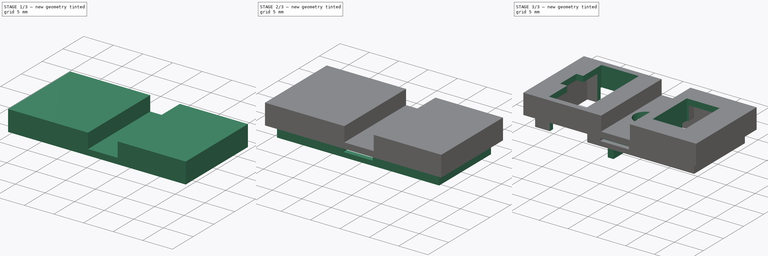
[diagram: build sequence overview — one tinted view per stage of 3, left to right]
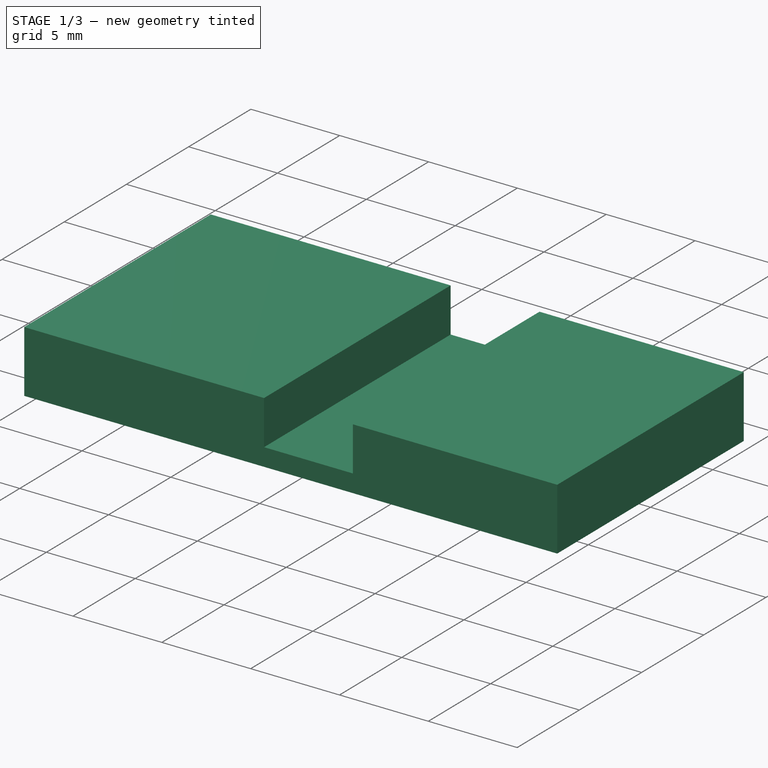
[diagram: stage 1 of 3 — iso view after this stage's code; geometry added in this stage tinted green]
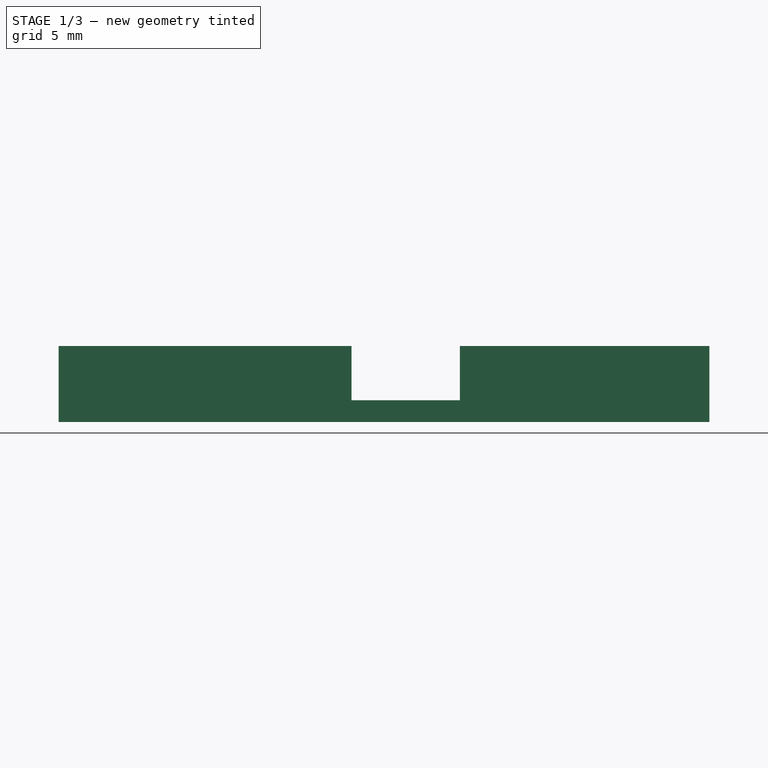
[diagram: stage 1 of 3 — front view after this stage's code; geometry added in this stage tinted green]
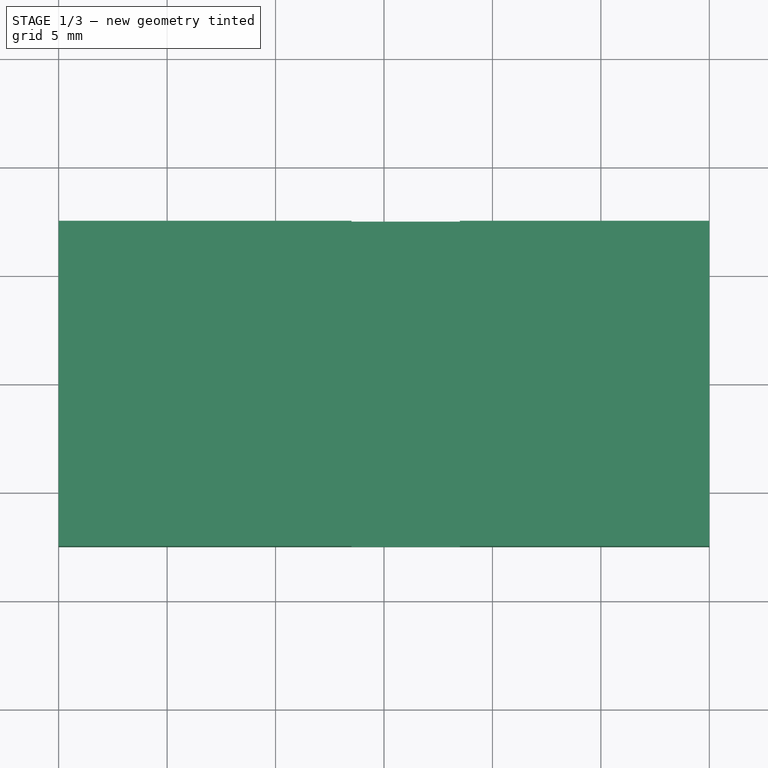
[diagram: stage 1 of 3 — top view after this stage's code; geometry added in this stage tinted green]
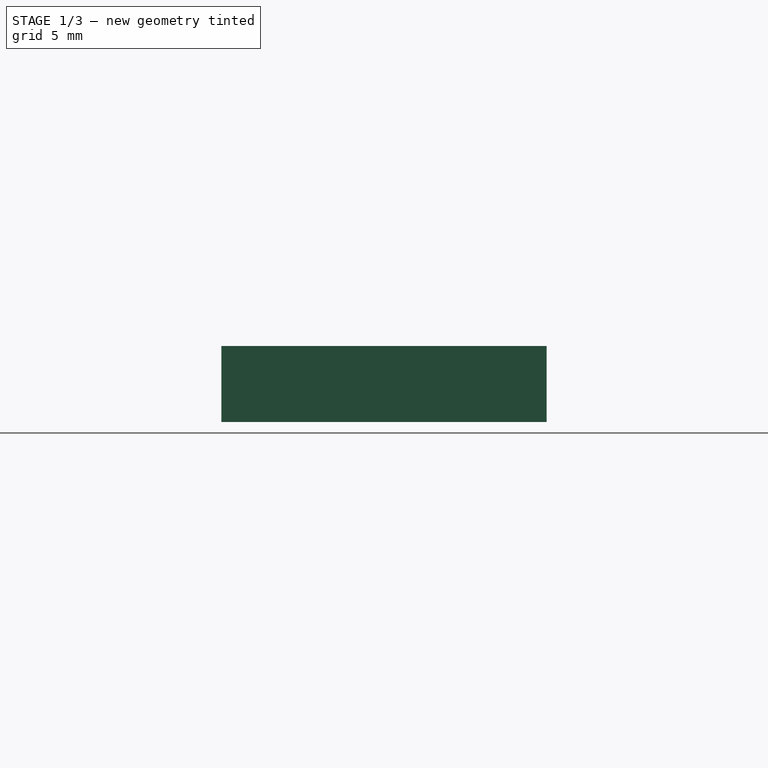
[diagram: stage 1 of 3 — right view after this stage's code; geometry added in this stage tinted green]
FCSTD DOCUMENT  (FreeCAD 0.17R13522 (Git))
Label: top30
License: All rights reserved
LicenseURL: http://en.wikipedia.org/wiki/All_rights_reserved
objects: Sketcher::SketchObject×8, PartDesign::Pad×5, PartDesign::Pocket×3, PartDesign::Body×1
note: 25 computed .brp shape members not serialized (recipe doc carries the construction recipe); baked Part::Feature solids carry a one-line shape summary decoded from their .brp

FEATURE [Sketcher::SketchObject] Sketch
  MapMode = 5
  Support = -> [XY_Plane]
  sketch-geometry (4):
    g0: LineSegment StartX=-15 StartY=7.5 StartZ=0 EndX=15 EndY=7.5 EndZ=0
    g1: LineSegment StartX=15 StartY=7.5 StartZ=0 EndX=15 EndY=-7.5 EndZ=0
    g2: LineSegment StartX=15 StartY=-7.5 StartZ=0 EndX=-15 EndY=-7.5 EndZ=0
    g3: LineSegment StartX=-15 StartY=-7.5 StartZ=0 EndX=-15 EndY=7.5 EndZ=0
  constraints (12):
    c: Coincident(g0,g1)
    c: Coincident(g1,g2)
    c: Coincident(g2,g3)
    c: Coincident(g3,g0)
    c: Horizontal(g0)
    c: Horizontal(g2)
    c: Vertical(g1)
    c: Vertical(g3)
    c: Symmetric(g0,g0,g-2)
    c: Symmetric(g0,g1,g-1)
    c: DistanceX(g0,g0) = 30
    c: DistanceY(g3,g3) = 15
FEATURE [PartDesign::Pad] Pad
  Length = 1
  Length2 = 100
  Profile = -> Sketch
  Type = 0
FEATURE [Sketcher::SketchObject] Sketch001
  MapMode = 5
  Placement = pos=(0,0,1) rot=(0,0,1;0rad)
  Support = -> [Pad]
  sketch-geometry (11):
    g0: LineSegment StartX=-15 StartY=7.5 StartZ=0 EndX=-1.5 EndY=7.5 EndZ=0
    g1: LineSegment StartX=-1.5 StartY=7.5 StartZ=0 EndX=-1.5 EndY=-7.5 EndZ=0
    g2: LineSegment StartX=-1.5 StartY=-7.5 StartZ=0 EndX=-15 EndY=-7.5 EndZ=0
    g3: LineSegment StartX=-15 StartY=-7.5 StartZ=0 EndX=-15 EndY=7.5 EndZ=0
    g4: LineSegment StartX=3.5 StartY=7.5 StartZ=0 EndX=15 EndY=7.5 EndZ=0
    g5: LineSegment StartX=15 StartY=7.5 StartZ=0 EndX=15 EndY=-7.5 EndZ=0
    g6: LineSegment StartX=15 StartY=-7.5 StartZ=0 EndX=3.5 EndY=-7.5 EndZ=0
    g7: LineSegment StartX=3.5 StartY=-7.5 StartZ=0 EndX=3.5 EndY=7.5 EndZ=0
    g8: LineSegment [constr] StartX=-1.5 StartY=7.5 StartZ=0 EndX=3.5 EndY=7.5 EndZ=0
    g9: LineSegment [constr] StartX=-1.5 StartY=-7.5 StartZ=0 EndX=3.5 EndY=-7.5 EndZ=0
    g10: GeomPoint X=1 Y=7.5 Z=0
  constraints (30):
    c: Coincident(g0,g1)
    c: Coincident(g1,g2)
    c: Coincident(g2,g3)
    c: Coincident(g3,g0)
    c: Horizontal(g0)
    c: Horizontal(g2)
    c: Vertical(g1)
    c: Vertical(g3)
    c: Coincident(g4,g5)
    c: Coincident(g5,g6)
    c: Coincident(g6,g7)
    c: Coincident(g7,g4)
    c: Horizontal(g4)
    c: Horizontal(g6)
    c: Vertical(g5)
    c: Vertical(g7)
    c: Symmetric(g0,g2,g-1)
    c: Coincident(g8,g0)
    c: Coincident(g8,g4)
    c: Horizontal(g8)
    c: Coincident(g9,g1)
    c: Coincident(g9,g6)
    c: Horizontal(g9)
    c: Symmetric(g0,g4,g-2)
    c: DistanceX(g0,g4) = 30
    c: DistanceY(g3,g3) = 15
    c: DistanceX(g8,g8) = 5
    c: PointOnObject(g10,g8)
    c: Symmetric(g0,g4,g10)
    c: DistanceX(g10,g4) = 14
FEATURE [PartDesign::Pad] Pad001
  BaseFeature = -> Pad
  Length = 2.5
  Length2 = 100
  Profile = -> Sketch001
  Type = 0
FEATURE [Sketcher::SketchObject] Sketch002
  MapMode = 5
  Placement = pos=(0,0,0) rot=(1,0,0;3.14159rad)
  Support = -> [Pad001]
  sketch-geometry (11):
    g0: LineSegment StartX=-13 StartY=5.5 StartZ=0 EndX=-3.5 EndY=5.5 EndZ=0
    g1: LineSegment StartX=-3.5 StartY=5.5 StartZ=0 EndX=-3.5 EndY=-5.5 EndZ=0
    g2: LineSegment StartX=-3.5 StartY=-5.5 StartZ=0 EndX=-13 EndY=-5.5 EndZ=0
    g3: LineSegment StartX=-13 StartY=-5.5 StartZ=0 EndX=-13 EndY=5.5 EndZ=0
    g4: LineSegment StartX=5.5 StartY=5.5 StartZ=0 EndX=13 EndY=5.5 EndZ=0
    g5: LineSegment StartX=13 StartY=5.5 StartZ=0 EndX=13 EndY=-5.5 EndZ=0
    g6: LineSegment StartX=13 StartY=-5.5 StartZ=0 EndX=5.5 EndY=-5.5 EndZ=0
    g7: LineSegment StartX=5.5 StartY=-5.5 StartZ=0 EndX=5.5 EndY=5.5 EndZ=0
    g8: LineSegment [constr] StartX=-3.5 StartY=5.5 StartZ=0 EndX=5.5 EndY=5.5 EndZ=0
    g9: LineSegment [constr] StartX=-3.5 StartY=-5.5 StartZ=0 EndX=5.5 EndY=-5.5 EndZ=0
    g10: GeomPoint X=1 Y=5.5 Z=0
  constraints (30):
    c: Coincident(g0,g1)
    c: Coincident(g1,g2)
    c: Coincident(g2,g3)
    c: Coincident(g3,g0)
    c: Horizontal(g0)
    c: Horizontal(g2)
    c: Vertical(g1)
    c: Vertical(g3)
    c: Coincident(g4,g5)
    c: Coincident(g5,g6)
    c: Coincident(g6,g7)
    c: Coincident(g7,g4)
    c: Horizontal(g4)
    c: Horizontal(g6)
    c: Vertical(g5)
    c: Vertical(g7)
    c: Symmetric(g0,g2,g-1)
    c: DistanceY(g3,g3) = 11
    c: Coincident(g8,g0)
    c: Coincident(g8,g4)
    c: Coincident(g9,g1)
    c: Coincident(g9,g6)
    c: Horizontal(g9)
    c: Horizontal(g8)
    c: DistanceX(g8,g8) = 9
    c: DistanceX(g0,g4) = 26
    c: PointOnObject(g10,g8)
    c: Symmetric(g0,g4,g10)
    c: DistanceX(g10,g4) = 12
    c: Symmetric(g0,g4,g-2)
FEATURE [PartDesign::Pocket] Pocket
  BaseFeature = -> Pad001
  Length = 2.5
  Length2 = 100
  Profile = -> Sketch002
  Type = 0
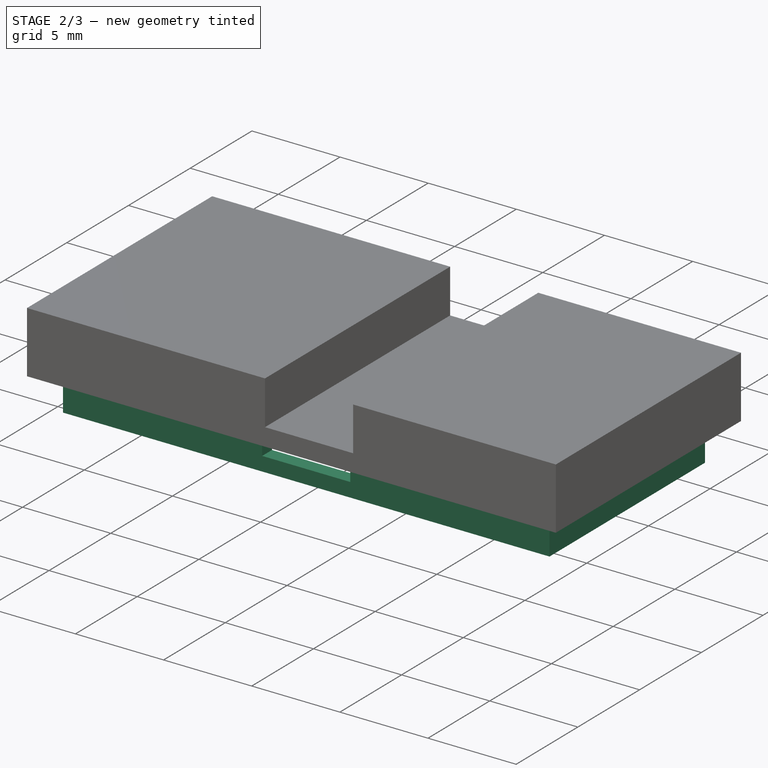
[diagram: stage 2 of 3 — iso view after this stage's code; geometry added in this stage tinted green]
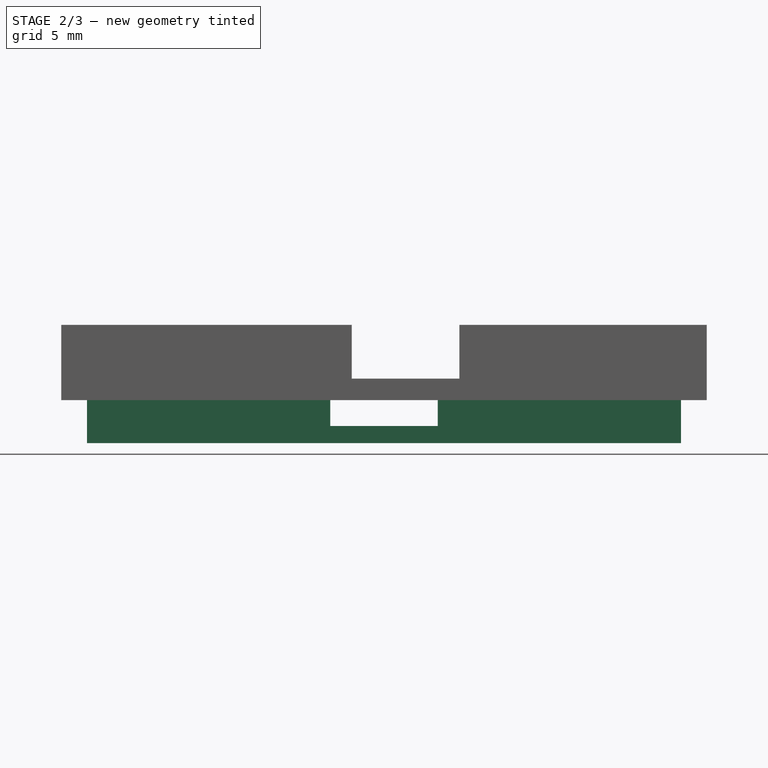
[diagram: stage 2 of 3 — front view after this stage's code; geometry added in this stage tinted green]
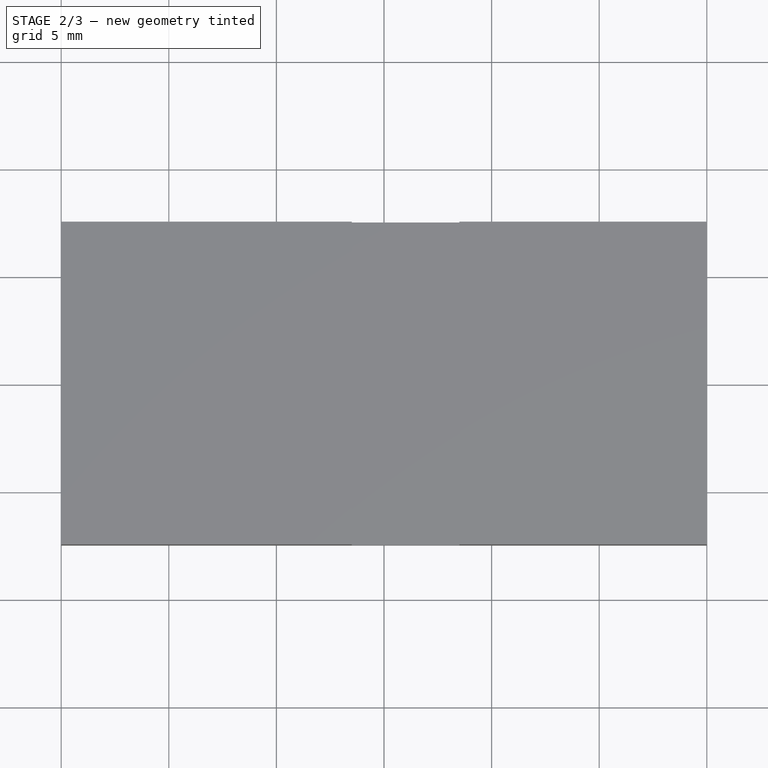
[diagram: stage 2 of 3 — top view after this stage's code; geometry added in this stage tinted green]
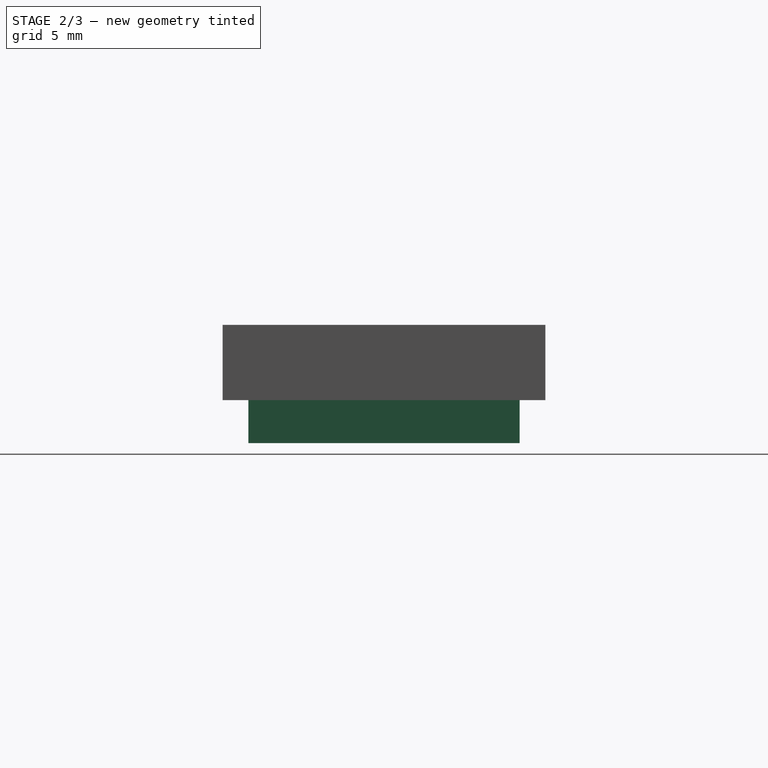
[diagram: stage 2 of 3 — right view after this stage's code; geometry added in this stage tinted green]
FEATURE [Sketcher::SketchObject] Sketch003
  MapMode = 5
  Placement = pos=(0,0,0) rot=(1,0,0;3.14159rad)
  Support = -> [Pocket]
  sketch-geometry (8):
    g0: LineSegment StartX=-13.8 StartY=6.3 StartZ=0 EndX=13.8 EndY=6.3 EndZ=0
    g1: LineSegment StartX=13.8 StartY=6.3 StartZ=0 EndX=13.8 EndY=-6.3 EndZ=0
    g2: LineSegment StartX=13.8 StartY=-6.3 StartZ=0 EndX=-13.8 EndY=-6.3 EndZ=0
    g3: LineSegment StartX=-13.8 StartY=-6.3 StartZ=0 EndX=-13.8 EndY=6.3 EndZ=0
    g4: LineSegment StartX=-13 StartY=5.5 StartZ=0 EndX=13 EndY=5.5 EndZ=0
    g5: LineSegment StartX=13 StartY=5.5 StartZ=0 EndX=13 EndY=-5.5 EndZ=0
    g6: LineSegment StartX=13 StartY=-5.5 StartZ=0 EndX=-13 EndY=-5.5 EndZ=0
    g7: LineSegment StartX=-13 StartY=-5.5 StartZ=0 EndX=-13 EndY=5.5 EndZ=0
  constraints (24):
    c: Coincident(g0,g1)
    c: Coincident(g1,g2)
    c: Coincident(g2,g3)
    c: Coincident(g3,g0)
    c: Horizontal(g0)
    c: Horizontal(g2)
    c: Vertical(g1)
    c: Vertical(g3)
    c: Coincident(g4,g5)
    c: Coincident(g5,g6)
    c: Coincident(g6,g7)
    c: Coincident(g7,g4)
    c: Horizontal(g4)
    c: Horizontal(g6)
    c: Vertical(g5)
    c: Vertical(g7)
    c: Symmetric(g0,g0,g-2)
    c: Symmetric(g0,g2,g-1)
    c: DistanceX(g0,g4) = 0.8
    c: DistanceY(g4,g0) = 0.8
    c: Symmetric(g4,g4,g-2)
    c: Symmetric(g4,g6,g-1)
    c: DistanceX(g4,g4) = 26
    c: DistanceY(g7,g7) = 11
FEATURE [PartDesign::Pad] Pad002
  BaseFeature = -> Pocket
  Length = 2
  Length2 = 100
  Profile = -> Sketch003
  Type = 0
FEATURE [Sketcher::SketchObject] Sketch004
  MapMode = 5
  Placement = pos=(0,-6.3,0) rot=(1,0,0;1.5708rad)
  Support = -> [Pad002]
  sketch-geometry (4):
    g0: LineSegment StartX=-2.5 StartY=0 StartZ=0 EndX=2.5 EndY=0 EndZ=0
    g1: LineSegment StartX=2.5 StartY=0 StartZ=0 EndX=2.5 EndY=-1.2 EndZ=0
    g2: LineSegment StartX=2.5 StartY=-1.2 StartZ=0 EndX=-2.5 EndY=-1.2 EndZ=0
    g3: LineSegment StartX=-2.5 StartY=-1.2 StartZ=0 EndX=-2.5 EndY=0 EndZ=0
  constraints (12):
    c: Coincident(g0,g1)
    c: Coincident(g1,g2)
    c: Coincident(g2,g3)
    c: Coincident(g3,g0)
    c: Horizontal(g0)
    c: Horizontal(g2)
    c: Vertical(g1)
    c: Vertical(g3)
    c: Symmetric(g0,g0,g-2)
    c: PointOnObject(g-1,g0)
    c: DistanceX(g0,g0) = 5
    c: DistanceY(g3,g3) = 1.2
FEATURE [PartDesign::Pocket] Pocket001
  BaseFeature = -> Pad002
  Length = 5
  Length2 = 100
  Profile = -> Sketch004
  Type = 1
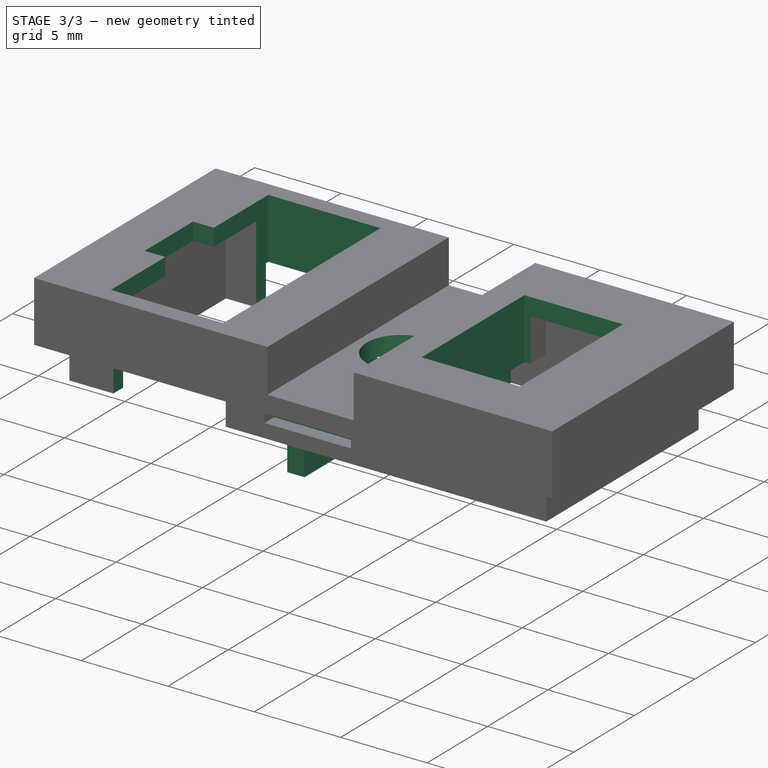
[diagram: stage 3 of 3 — iso view after this stage's code; geometry added in this stage tinted green]
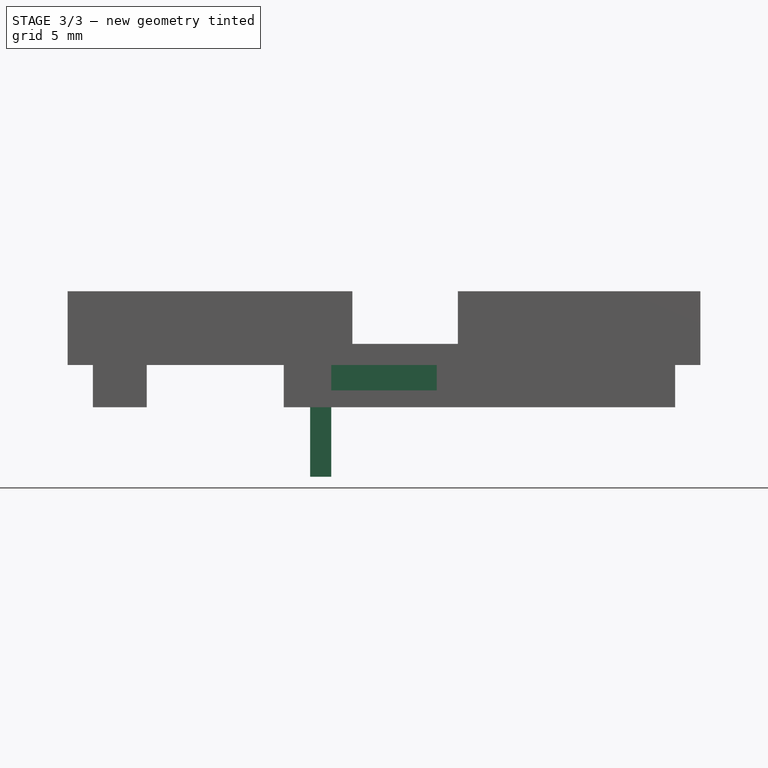
[diagram: stage 3 of 3 — front view after this stage's code; geometry added in this stage tinted green]
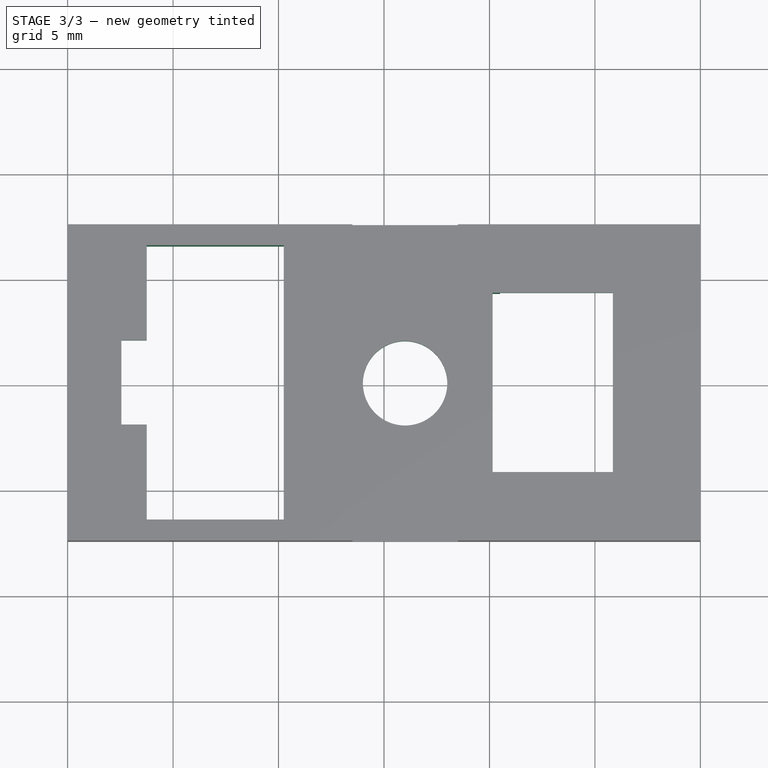
[diagram: stage 3 of 3 — top view after this stage's code; geometry added in this stage tinted green]
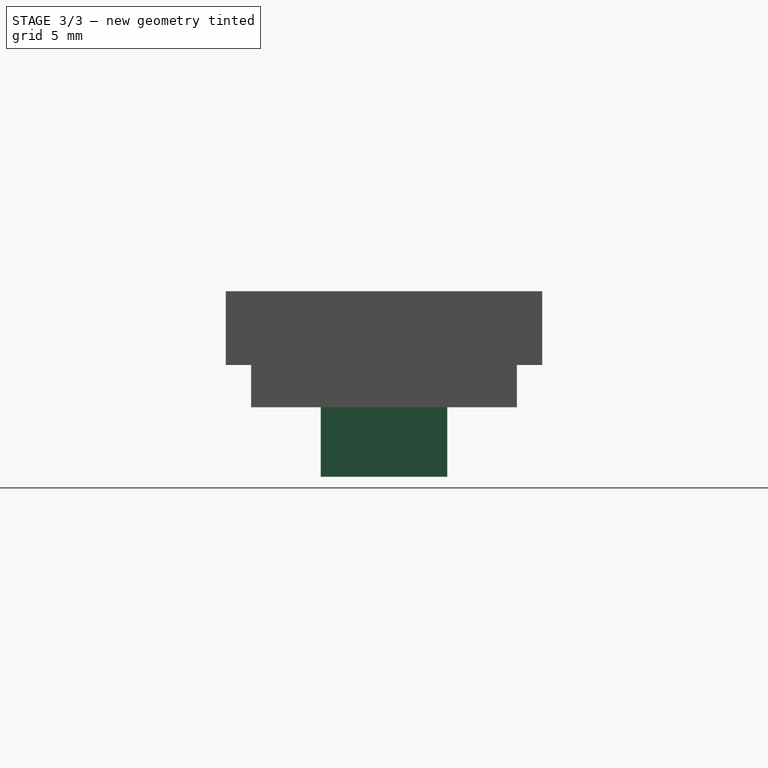
[diagram: stage 3 of 3 — right view after this stage's code; geometry added in this stage tinted green]
FEATURE [Sketcher::SketchObject] Sketch005
  MapMode = 5
  Placement = pos=(0,0,3.5) rot=(0,0,1;0rad)
  Support = -> [Pocket001]
  sketch-geometry (16):
    g0: Circle CenterX=1 CenterY=0 CenterZ=0 NormalX=0 NormalY=0 NormalZ=1 AngleXU=0 Radius=2
    g1: LineSegment StartX=5.15 StartY=4.25 StartZ=0 EndX=10.85 EndY=4.25 EndZ=0
    g2: LineSegment StartX=10.85 StartY=4.25 StartZ=0 EndX=10.85 EndY=-4.25 EndZ=0
    g3: LineSegment StartX=10.85 StartY=-4.25 StartZ=0 EndX=5.15 EndY=-4.25 EndZ=0
    g4: LineSegment StartX=5.15 StartY=-4.25 StartZ=0 EndX=5.15 EndY=4.25 EndZ=0
    g5: LineSegment StartX=-11.25 StartY=6.5 StartZ=0 EndX=-11.25 EndY=2 EndZ=0
    g6: LineSegment StartX=-11.25 StartY=2 StartZ=0 EndX=-12.45 EndY=2 EndZ=0
    g7: LineSegment StartX=-12.45 StartY=2 StartZ=0 EndX=-12.45 EndY=-2 EndZ=0
    g8: LineSegment StartX=-12.45 StartY=-2 StartZ=0 EndX=-11.25 EndY=-2 EndZ=0
    g9: LineSegment StartX=-11.25 StartY=-2 StartZ=0 EndX=-11.25 EndY=-6.5 EndZ=0
    g10: LineSegment StartX=-11.25 StartY=-6.5 StartZ=0 EndX=-4.75 EndY=-6.5 EndZ=0
    g11: LineSegment StartX=-4.75 StartY=-6.5 StartZ=0 EndX=-4.75 EndY=6.5 EndZ=0
    g12: LineSegment StartX=-4.75 StartY=6.5 StartZ=0 EndX=-11.25 EndY=6.5 EndZ=0
    g13: LineSegment [constr] StartX=-11.25 StartY=2 StartZ=0 EndX=-11.25 EndY=-2 EndZ=0
    g14: GeomPoint X=-8 Y=6.5 Z=0
    g15: GeomPoint X=8 Y=4.25 Z=0
  constraints (45):
    c: PointOnObject(g0,g-1)
    c: Coincident(g1,g2)
    c: Coincident(g2,g3)
    c: Coincident(g3,g4)
    c: Coincident(g4,g1)
    c: Horizontal(g1)
    c: Horizontal(g3)
    c: Vertical(g2)
    c: Vertical(g4)
    c: Coincident(g5,g6)
    c: Coincident(g6,g7)
    c: Vertical(g7)
    c: Coincident(g7,g8)
    c: Horizontal(g8)
    c: Coincident(g8,g9)
    c: Coincident(g9,g10)
    c: Horizontal(g10)
    c: Coincident(g10,g11)
    c: Vertical(g11)
    c: Coincident(g11,g12)
    c: Coincident(g12,g5)
    c: Horizontal(g12)
    c: Horizontal(g6)
    c: Vertical(g9)
    c: Radius(g0) = 2
    c: DistanceX(g-1,g0) = 1
    c: Vertical(g5)
    c: Coincident(g13,g5)
    c: Coincident(g13,g8)
    c: Vertical(g13)
    c: Equal(g5,g9)
    c: DistanceY(g7,g7) = 4
    c: DistanceX(g6,g6) = 1.2
    c: DistanceX(g12,g12) = 6.5
    c: DistanceY(g11,g11) = 13
    c: PointOnObject(g14,g12)
    c: Symmetric(g5,g11,g14)
    c: Symmetric(g5,g9,g-1)
    c: DistanceX(g14,g0) = 9
    c: DistanceX(g1,g1) = 5.7
    c: DistanceY(g2,g2) = 8.5
    c: Symmetric(g1,g2,g-1)
    c: PointOnObject(g15,g1)
    c: Symmetric(g1,g1,g15)
    c: DistanceX(g0,g15) = 7
FEATURE [PartDesign::Pocket] Pocket002
  BaseFeature = -> Pocket001
  Length = 5
  Length2 = 100
  Profile = -> Sketch005
  Type = 1
FEATURE [Sketcher::SketchObject] Sketch006
  MapMode = 5
  Placement = pos=(0,0,0) rot=(1,0,0;3.14159rad)
  Support = -> [Pocket002]
  sketch-geometry (4):
    g0: LineSegment StartX=-3.5 StartY=3 StartZ=0 EndX=-2.5 EndY=3 EndZ=0
    g1: LineSegment StartX=-2.5 StartY=3 StartZ=0 EndX=-2.5 EndY=-3 EndZ=0
    g2: LineSegment StartX=-2.5 StartY=-3 StartZ=0 EndX=-3.5 EndY=-3 EndZ=0
    g3: LineSegment StartX=-3.5 StartY=-3 StartZ=0 EndX=-3.5 EndY=3 EndZ=0
  constraints (12):
    c: Coincident(g0,g1)
    c: Coincident(g1,g2)
    c: Coincident(g2,g3)
    c: Coincident(g3,g0)
    c: Horizontal(g0)
    c: Horizontal(g2)
    c: Vertical(g1)
    c: Vertical(g3)
    c: Symmetric(g0,g1,g-1)
    c: DistanceX(g0,g0) = 1
    c: DistanceY(g1,g1) = 6
    c: DistanceX(g0,g-1) = 3.5
FEATURE [PartDesign::Pad] Pad003
  BaseFeature = -> Pocket002
  Length = 5.3
  Length2 = 100
  Profile = -> Sketch006
  Type = 0
FEATURE [Sketcher::SketchObject] Sketch007
  MapMode = 5
  Placement = pos=(0,0,0) rot=(1,0,0;3.14159rad)
  Support = -> [Pad003]
  sketch-geometry (9):
    g0: LineSegment StartX=-3.5 StartY=5.5 StartZ=0 EndX=3.5 EndY=5.5 EndZ=0
    g1: LineSegment StartX=3.5 StartY=5.5 StartZ=0 EndX=3.5 EndY=4.5 EndZ=0
    g2: LineSegment StartX=3.5 StartY=4.5 StartZ=0 EndX=-3.5 EndY=4.5 EndZ=0
    g3: LineSegment StartX=-3.5 StartY=4.5 StartZ=0 EndX=-3.5 EndY=5.5 EndZ=0
    g4: LineSegment StartX=-3.5 StartY=-4.5 StartZ=0 EndX=3.5 EndY=-4.5 EndZ=0
    g5: LineSegment StartX=3.5 StartY=-4.5 StartZ=0 EndX=3.5 EndY=-5.5 EndZ=0
    g6: LineSegment StartX=3.5 StartY=-5.5 StartZ=0 EndX=-3.5 EndY=-5.5 EndZ=0
    g7: LineSegment StartX=-3.5 StartY=-5.5 StartZ=0 EndX=-3.5 EndY=-4.5 EndZ=0
    g8: LineSegment [constr] StartX=-3.5 StartY=4.5 StartZ=0 EndX=-3.5 EndY=-4.5 EndZ=0
  constraints (26):
    c: Coincident(g0,g1)
    c: Coincident(g1,g2)
    c: Coincident(g2,g3)
    c: Coincident(g3,g0)
    c: Horizontal(g0)
    c: Horizontal(g2)
    c: Vertical(g1)
    c: Vertical(g3)
    c: Coincident(g4,g5)
    c: Coincident(g5,g6)
    c: Coincident(g6,g7)
    c: Coincident(g7,g4)
    c: Horizontal(g4)
    c: Horizontal(g6)
    c: Vertical(g5)
    c: Vertical(g7)
    c: Coincident(g8,g2)
    c: Coincident(g8,g4)
    c: Vertical(g8)
    c: Equal(g3,g7)
    c: Equal(g2,g4)
    c: Symmetric(g6,g0,g-1)
    c: DistanceY(g6,g0) = 11
    c: DistanceY(g5,g5) = 1
    c: DistanceX(g2,g-1) = 3.5
    c: DistanceX(g2,g2) = 7
FEATURE [PartDesign::Pad] Pad004
  BaseFeature = -> Pad003
  Length = 2
  Length2 = 100
  Profile = -> Sketch007
  Type = 0
FEATURE [PartDesign::Body] Body
  Group = -> [Sketch,Pad,Sketch001,Pad001,Sketch002,Pocket,Sketch003,Pad002,Sketch004,Pocket001,Sketch005,Pocket002,Sketch006,Pad003,Sketch007,Pad004]
  Origin = -> Origin
  Tip = -> Pad004
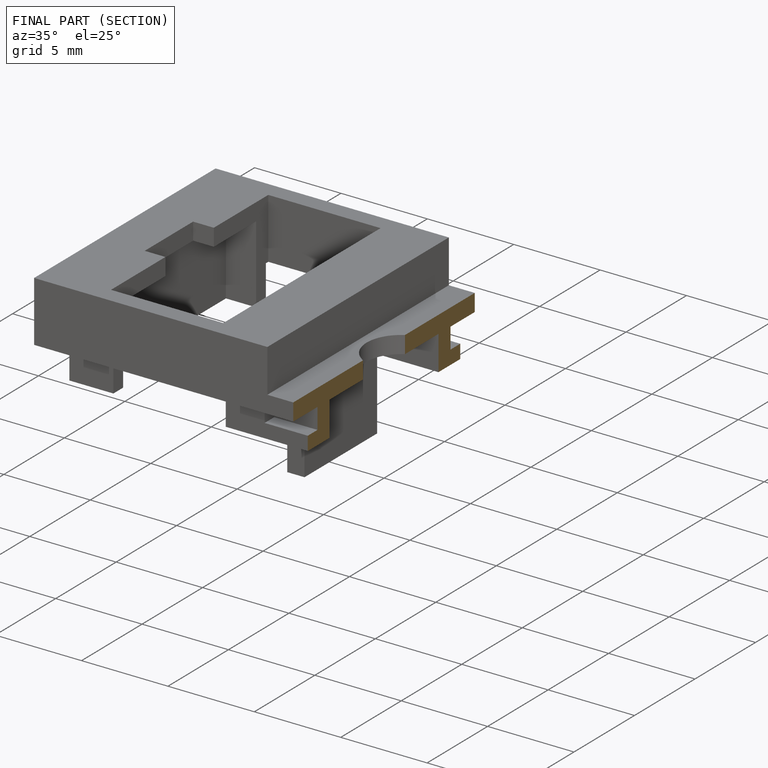
[diagram: finished part — half-section view (interior)]
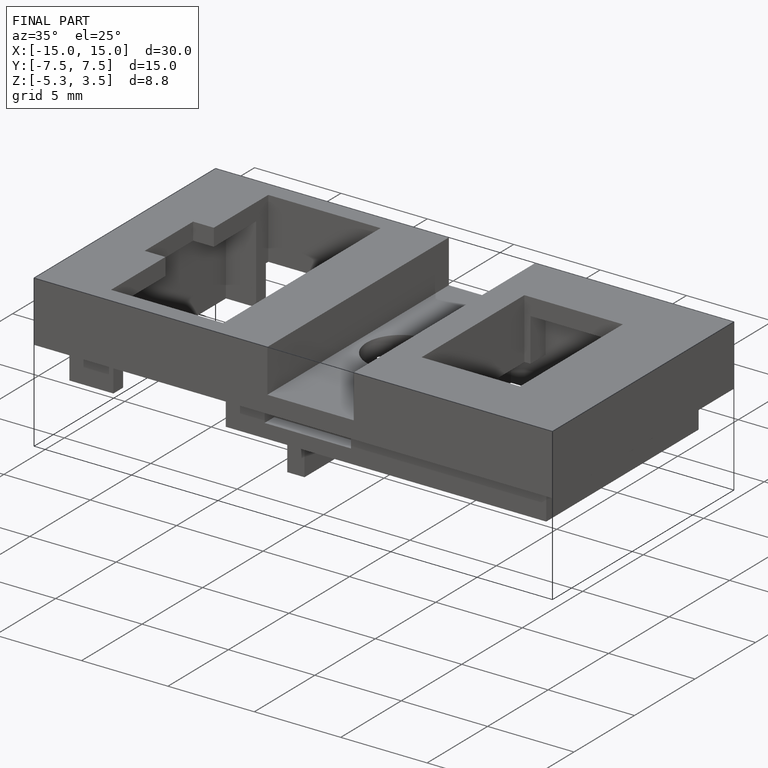
[diagram: finished part — iso view with bounding-box wireframe]
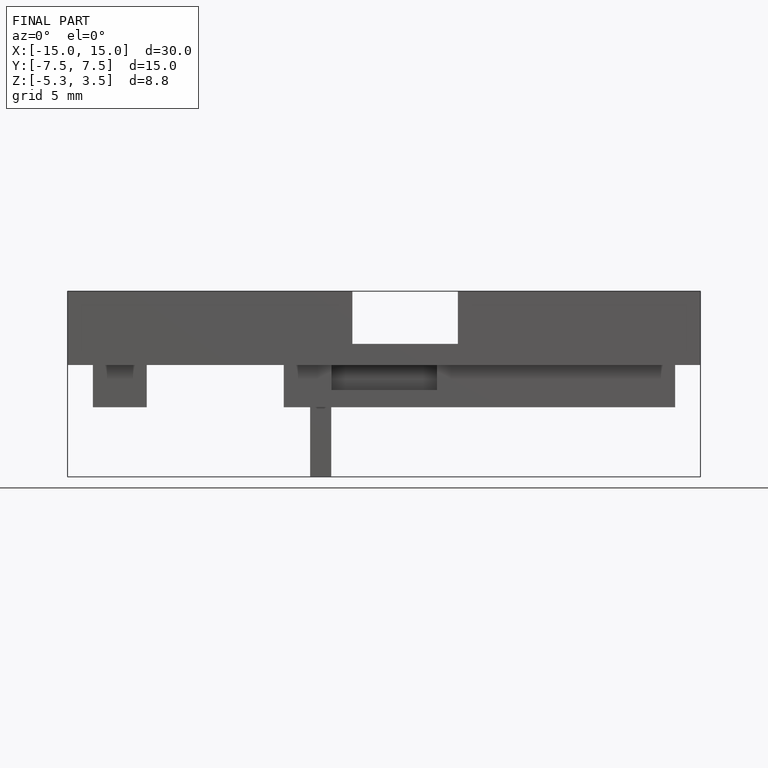
[diagram: finished part — front view with bounding-box wireframe]
